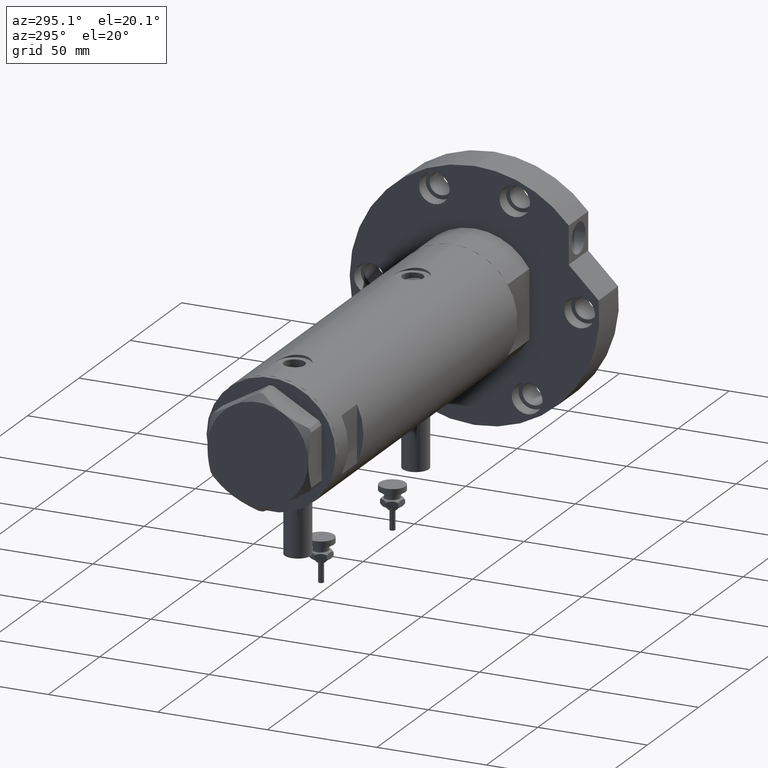
[diagram: clean part render]
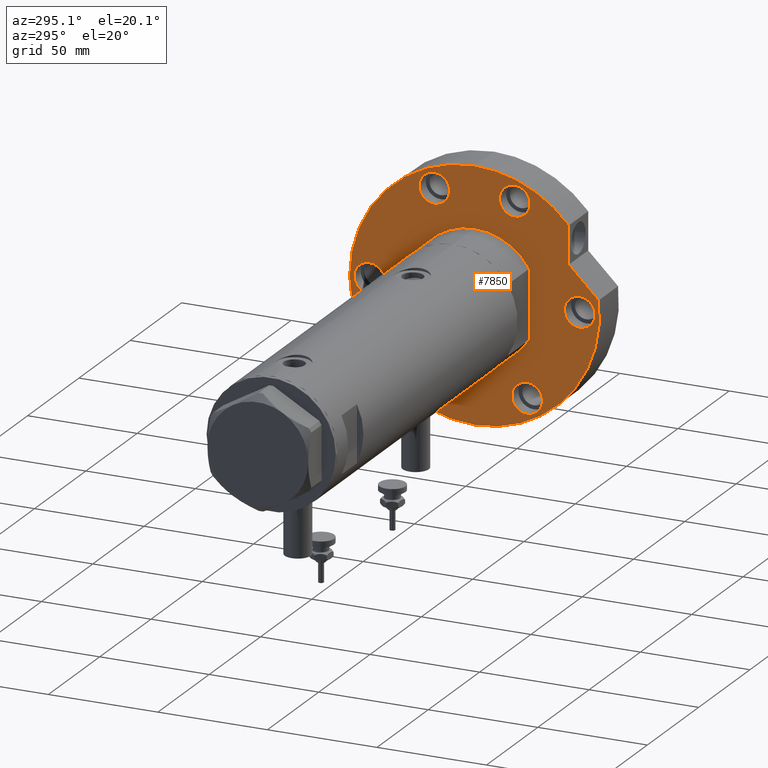
[diagram: same view with one face highlighted and labeled with its STEP entity id]
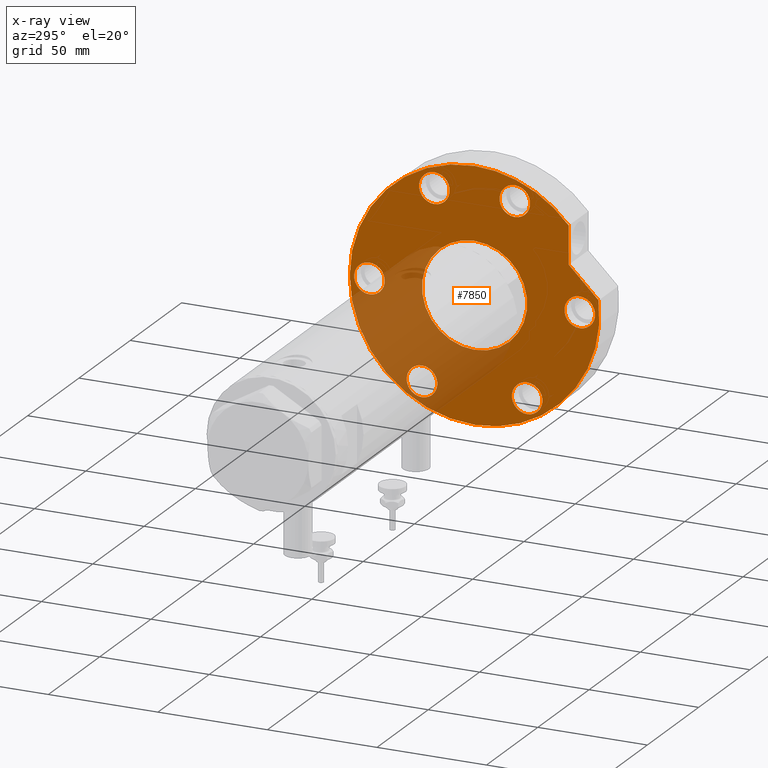
[diagram: x-ray of the same camera — body ghosted, the highlighted face saturated]
A machine part, auxiliary view. The second image highlights one B-rep face of the part: STEP entity #7850.
The next image is the same camera in x-ray: the body ghosted, the highlighted face saturated — about 28% of this face is hidden behind the body in this view.
In plain terms, the highlighted planar face has unit normal (1, 0, -0).
Its self-contained STEP definition (entity closure, byte-faithful):
#35 = CARTESIAN_POINT ( 'NONE',  ( 20.20945616129993283, 42.98007820311755012, 0.000000000000000000 ) ) ;
#62 = DIRECTION ( 'NONE',  ( 0.000000000000000000, 0.000000000000000000, -1.000000000000000000 ) ) ;
#82 = CARTESIAN_POINT ( 'NONE',  ( -41.56921938165294961, -24.00000000000018829, 0.000000000000000000 ) ) ;
#142 = EDGE_CURVE ( 'NONE', #5837, #6689, #3208, .T. ) ;
#200 = VERTEX_POINT ( 'NONE', #726 ) ;
#237 = EDGE_CURVE ( 'NONE', #6024, #7496, #1742, .T. ) ;
#301 = CARTESIAN_POINT ( 'NONE',  ( 44.34621756054168173, 18.36880475352450048, 0.000000000000000000 ) ) ;
#304 = AXIS2_PLACEMENT_3D ( 'NONE', #4825, #5321, #1639 ) ;
#313 = CIRCLE ( 'NONE', #4335, 6.999999999999999112 ) ;
#334 = DIRECTION ( 'NONE',  ( 0.000000000000000000, 0.000000000000000000, -1.000000000000000000 ) ) ;
#439 = AXIS2_PLACEMENT_3D ( 'NONE', #3894, #604, #2420 ) ;
#479 = FACE_BOUND ( 'NONE', #5874, .T. ) ;
#525 = CIRCLE ( 'NONE', #6155, 6.999999999999999112 ) ;
#552 = CARTESIAN_POINT ( 'NONE',  ( 0.000000000000000000, -48.00000000000000000, 0.000000000000000000 ) ) ;
#595 = DIRECTION ( 'NONE',  ( -1.000000000000000000, 0.000000000000000000, 0.000000000000000000 ) ) ;
#604 = DIRECTION ( 'NONE',  ( 0.000000000000000000, 0.000000000000000000, -1.000000000000000000 ) ) ;
#606 = DIRECTION ( 'NONE',  ( 0.000000000000000000, 0.000000000000000000, 1.000000000000000000 ) ) ;
#627 = CARTESIAN_POINT ( 'NONE',  ( 20.20945616129993283, 42.98007820311755012, 0.000000000000000000 ) ) ;
#658 = CIRCLE ( 'NONE', #6703, 57.00000000000000000 ) ;
#726 = CARTESIAN_POINT ( 'NONE',  ( 37.34621756054168173, -18.36880475352450048, 0.000000000000000000 ) ) ;
#832 = VECTOR ( 'NONE', #5862, 999.9999999999998863 ) ;
#865 = ORIENTED_EDGE ( 'NONE', *, *, #2834, .F. ) ;
#872 = EDGE_CURVE ( 'NONE', #7496, #6024, #1847, .T. ) ;
#938 = DIRECTION ( 'NONE',  ( 0.000000000000000000, 0.000000000000000000, -1.000000000000000000 ) ) ;
#1003 = DIRECTION ( 'NONE',  ( 1.000000000000000000, 0.000000000000000000, -0.000000000000000000 ) ) ;
#1027 = ORIENTED_EDGE ( 'NONE', *, *, #1993, .F. ) ;
#1037 = VERTEX_POINT ( 'NONE', #5931 ) ;
#1073 = AXIS2_PLACEMENT_3D ( 'NONE', #4545, #5749, #3247 ) ;
#1160 = DIRECTION ( 'NONE',  ( 0.000000000000000000, 0.000000000000000000, 1.000000000000000000 ) ) ;
#1207 = CARTESIAN_POINT ( 'NONE',  ( -48.56921938165294961, -24.00000000000018829, 0.000000000000000000 ) ) ;
#1314 = DIRECTION ( 'NONE',  ( 0.000000000000000000, 0.000000000000000000, 1.000000000000000000 ) ) ;
#1364 = DIRECTION ( 'NONE',  ( 0.000000000000000000, 0.000000000000000000, -1.000000000000000000 ) ) ;
#1407 = CARTESIAN_POINT ( 'NONE',  ( 44.34621756054168173, -18.36880475352450048, 0.000000000000000000 ) ) ;
#1435 = EDGE_CURVE ( 'NONE', #6992, #3123, #5864, .T. ) ;
#1506 = CARTESIAN_POINT ( 'NONE',  ( 6.569366352211361004, 56.62016801220598694, 0.000000000000000000 ) ) ;
#1551 = CARTESIAN_POINT ( 'NONE',  ( 57.00000000000000000, 6.980486755139912911E-15, 0.000000000000000000 ) ) ;
#1579 = CARTESIAN_POINT ( 'NONE',  ( 37.43945616129992970, 42.98007820311755012, 0.000000000000000000 ) ) ;
#1639 = DIRECTION ( 'NONE',  ( -1.000000000000000000, 0.000000000000000000, 0.000000000000000000 ) ) ;
#1687 = LINE ( 'NONE', #4615, #5362 ) ;
#1710 = EDGE_CURVE ( 'NONE', #1037, #1877, #1994, .T. ) ;
#1711 = FACE_BOUND ( 'NONE', #7567, .T. ) ;
#1742 = CIRCLE ( 'NONE', #4286, 6.999999999999999112 ) ;
#1840 = ORIENTED_EDGE ( 'NONE', *, *, #4459, .F. ) ;
#1847 = CIRCLE ( 'NONE', #4142, 6.999999999999999112 ) ;
#1877 = VERTEX_POINT ( 'NONE', #5830 ) ;
#1891 = DIRECTION ( 'NONE',  ( 0.000000000000000000, 0.000000000000000000, 1.000000000000000000 ) ) ;
#1930 = DIRECTION ( 'NONE',  ( 1.000000000000000000, 0.000000000000000000, 0.000000000000000000 ) ) ;
#1962 = CARTESIAN_POINT ( 'NONE',  ( 6.999999999999999112, 48.00000000000000000, 0.000000000000000000 ) ) ;
#1968 = DIRECTION ( 'NONE',  ( 1.000000000000000000, 0.000000000000000000, 0.000000000000000000 ) ) ;
#1977 = CARTESIAN_POINT ( 'NONE',  ( 0.000000000000000000, 48.00000000000000000, 0.000000000000000000 ) ) ;
#1993 = EDGE_CURVE ( 'NONE', #6471, #7214, #8030, .T. ) ;
#1994 = CIRCLE ( 'NONE', #4543, 24.00000000000000355 ) ;
#2011 = CARTESIAN_POINT ( 'NONE',  ( 0.000000000000000000, 0.000000000000000000, 0.000000000000000000 ) ) ;
#2016 = CARTESIAN_POINT ( 'NONE',  ( 37.34621756054168173, 18.36880475352450048, 0.000000000000000000 ) ) ;
#2161 = ORIENTED_EDGE ( 'NONE', *, *, #4468, .F. ) ;
#2229 = CARTESIAN_POINT ( 'NONE',  ( -34.56921938165294961, -24.00000000000018829, 0.000000000000000000 ) ) ;
#2270 = ORIENTED_EDGE ( 'NONE', *, *, #7503, .F. ) ;
#2347 = FACE_BOUND ( 'NONE', #8223, .T. ) ;
#2354 = ORIENTED_EDGE ( 'NONE', *, *, #4306, .T. ) ;
#2420 = DIRECTION ( 'NONE',  ( -1.000000000000000000, 0.000000000000000000, 0.000000000000000000 ) ) ;
#2535 = ORIENTED_EDGE ( 'NONE', *, *, #8215, .F. ) ;
#2538 = CARTESIAN_POINT ( 'NONE',  ( -41.56921938165310593, 23.99999999999990408, 0.000000000000000000 ) ) ;
#2559 = EDGE_CURVE ( 'NONE', #3387, #6228, #3756, .T. ) ;
#2645 = LINE ( 'NONE', #35, #832 ) ;
#2697 = CIRCLE ( 'NONE', #7391, 6.999999999999999112 ) ;
#2719 = ORIENTED_EDGE ( 'NONE', *, *, #872, .F. ) ;
#2767 = CARTESIAN_POINT ( 'NONE',  ( -34.56921938165311303, 23.99999999999990408, 0.000000000000000000 ) ) ;
#2777 = EDGE_CURVE ( 'NONE', #6021, #3123, #1687, .T. ) ;
#2834 = EDGE_CURVE ( 'NONE', #5327, #7414, #658, .T. ) ;
#2865 = DIRECTION ( 'NONE',  ( -1.000000000000000000, 0.000000000000000000, 0.000000000000000000 ) ) ;
#2892 = ORIENTED_EDGE ( 'NONE', *, *, #3910, .F. ) ;
#2951 = AXIS2_PLACEMENT_3D ( 'NONE', #6093, #334, #2865 ) ;
#2997 = CIRCLE ( 'NONE', #304, 6.999999999999999112 ) ;
#3069 = AXIS2_PLACEMENT_3D ( 'NONE', #301, #938, #7481 ) ;
#3076 = CARTESIAN_POINT ( 'NONE',  ( 51.34621756054168173, -18.36880475352450048, 0.000000000000000000 ) ) ;
#3084 = CIRCLE ( 'NONE', #7379, 24.00000000000000355 ) ;
#3123 = VERTEX_POINT ( 'NONE', #1579 ) ;
#3194 = CARTESIAN_POINT ( 'NONE',  ( -48.56921938165310593, 23.99999999999990408, 0.000000000000000000 ) ) ;
#3208 = CIRCLE ( 'NONE', #1073, 6.999999999999999112 ) ;
#3247 = DIRECTION ( 'NONE',  ( -1.000000000000000000, 0.000000000000000000, 0.000000000000000000 ) ) ;
#3387 = VERTEX_POINT ( 'NONE', #6131 ) ;
#3388 = CARTESIAN_POINT ( 'NONE',  ( -41.56921938165310593, 23.99999999999990408, 0.000000000000000000 ) ) ;
#3515 = VERTEX_POINT ( 'NONE', #3076 ) ;
#3520 = EDGE_LOOP ( 'NONE', ( #7551, #2719 ) ) ;
#3602 = FACE_BOUND ( 'NONE', #5528, .T. ) ;
#3756 = CIRCLE ( 'NONE', #2951, 6.999999999999999112 ) ;
#3774 = CARTESIAN_POINT ( 'NONE',  ( 0.000000000000000000, 0.000000000000000000, 0.000000000000000000 ) ) ;
#3852 = DIRECTION ( 'NONE',  ( -1.000000000000000000, 0.000000000000000000, 0.000000000000000000 ) ) ;
#3861 = DIRECTION ( 'NONE',  ( -1.000000000000000000, 0.000000000000000000, 0.000000000000000000 ) ) ;
#3888 = DIRECTION ( 'NONE',  ( -1.000000000000000000, 0.000000000000000000, 0.000000000000000000 ) ) ;
#3894 = CARTESIAN_POINT ( 'NONE',  ( 44.34621756054168173, -18.36880475352450048, 0.000000000000000000 ) ) ;
#3910 = EDGE_CURVE ( 'NONE', #3515, #200, #8162, .T. ) ;
#3930 = DIRECTION ( 'NONE',  ( 0.000000000000000000, 0.000000000000000000, -1.000000000000000000 ) ) ;
#3931 = DIRECTION ( 'NONE',  ( -1.000000000000000000, 0.000000000000000000, 0.000000000000000000 ) ) ;
#4075 = AXIS2_PLACEMENT_3D ( 'NONE', #6873, #1160, #1003 ) ;
#4142 = AXIS2_PLACEMENT_3D ( 'NONE', #3388, #62, #3861 ) ;
#4164 = AXIS2_PLACEMENT_3D ( 'NONE', #82, #8280, #595 ) ;
#4228 = ORIENTED_EDGE ( 'NONE', *, *, #7190, .F. ) ;
#4286 = AXIS2_PLACEMENT_3D ( 'NONE', #2538, #5091, #3888 ) ;
#4306 = EDGE_CURVE ( 'NONE', #1877, #1037, #3084, .T. ) ;
#4313 = PLANE ( 'NONE',  #4075 ) ;
#4335 = AXIS2_PLACEMENT_3D ( 'NONE', #6704, #1364, #3931 ) ;
#4425 = DIRECTION ( 'NONE',  ( 1.000000000000000000, 0.000000000000000000, 0.000000000000000000 ) ) ;
#4446 = AXIS2_PLACEMENT_3D ( 'NONE', #6719, #1314, #7705 ) ;
#4449 = ORIENTED_EDGE ( 'NONE', *, *, #1435, .F. ) ;
#4459 = EDGE_CURVE ( 'NONE', #7122, #6254, #6972, .T. ) ;
#4468 = EDGE_CURVE ( 'NONE', #6228, #3387, #525, .T. ) ;
#4509 = CARTESIAN_POINT ( 'NONE',  ( 51.34621756054168173, 18.36880475352450048, 0.000000000000000000 ) ) ;
#4543 = AXIS2_PLACEMENT_3D ( 'NONE', #3774, #606, #6316 ) ;
#4545 = CARTESIAN_POINT ( 'NONE',  ( 0.000000000000000000, -48.00000000000000000, 0.000000000000000000 ) ) ;
#4546 = AXIS2_PLACEMENT_3D ( 'NONE', #1407, #7739, #3852 ) ;
#4588 = ORIENTED_EDGE ( 'NONE', *, *, #2559, .F. ) ;
#4591 = CIRCLE ( 'NONE', #439, 6.999999999999999112 ) ;
#4615 = CARTESIAN_POINT ( 'NONE',  ( 20.20945616129993283, 42.98007820311755012, 0.000000000000000000 ) ) ;
#4670 = AXIS2_PLACEMENT_3D ( 'NONE', #5293, #7228, #7860 ) ;
#4825 = CARTESIAN_POINT ( 'NONE',  ( -41.56921938165294961, -24.00000000000018829, 0.000000000000000000 ) ) ;
#5047 = EDGE_LOOP ( 'NONE', ( #5078, #7876, #4449, #5202, #865 ) ) ;
#5048 = CARTESIAN_POINT ( 'NONE',  ( 6.999999999999999112, -48.00000000000000000, 0.000000000000000000 ) ) ;
#5078 = ORIENTED_EDGE ( 'NONE', *, *, #6445, .T. ) ;
#5091 = DIRECTION ( 'NONE',  ( 0.000000000000000000, 0.000000000000000000, -1.000000000000000000 ) ) ;
#5202 = ORIENTED_EDGE ( 'NONE', *, *, #5547, .F. ) ;
#5293 = CARTESIAN_POINT ( 'NONE',  ( 0.000000000000000000, 0.000000000000000000, 0.000000000000000000 ) ) ;
#5321 = DIRECTION ( 'NONE',  ( 0.000000000000000000, 0.000000000000000000, -1.000000000000000000 ) ) ;
#5327 = VERTEX_POINT ( 'NONE', #1506 ) ;
#5362 = VECTOR ( 'NONE', #1968, 1000.000000000000000 ) ;
#5488 = EDGE_CURVE ( 'NONE', #6689, #5837, #2697, .T. ) ;
#5528 = EDGE_LOOP ( 'NONE', ( #4588, #2161 ) ) ;
#5547 = EDGE_CURVE ( 'NONE', #7414, #6992, #6989, .T. ) ;
#5557 = FACE_BOUND ( 'NONE', #6410, .T. ) ;
#5656 = ORIENTED_EDGE ( 'NONE', *, *, #142, .F. ) ;
#5667 = DIRECTION ( 'NONE',  ( 0.000000000000000000, 0.000000000000000000, -1.000000000000000000 ) ) ;
#5749 = DIRECTION ( 'NONE',  ( 0.000000000000000000, 0.000000000000000000, -1.000000000000000000 ) ) ;
#5830 = CARTESIAN_POINT ( 'NONE',  ( -24.00000000000000355, 2.939152317953648289E-15, 0.000000000000000000 ) ) ;
#5837 = VERTEX_POINT ( 'NONE', #6955 ) ;
#5862 = DIRECTION ( 'NONE',  ( 0.7071067811865510144, -0.7071067811865441310, -0.000000000000000000 ) ) ;
#5864 = CIRCLE ( 'NONE', #4670, 57.00000000000000000 ) ;
#5874 = EDGE_LOOP ( 'NONE', ( #1027, #2535 ) ) ;
#5931 = CARTESIAN_POINT ( 'NONE',  ( 24.00000000000000355, 0.000000000000000000, 0.000000000000000000 ) ) ;
#6021 = VERTEX_POINT ( 'NONE', #627 ) ;
#6024 = VERTEX_POINT ( 'NONE', #3194 ) ;
#6093 = CARTESIAN_POINT ( 'NONE',  ( 0.000000000000000000, 48.00000000000000000, 0.000000000000000000 ) ) ;
#6131 = CARTESIAN_POINT ( 'NONE',  ( -6.999999999999999112, 48.00000000000000000, 0.000000000000000000 ) ) ;
#6155 = AXIS2_PLACEMENT_3D ( 'NONE', #1977, #3930, #6469 ) ;
#6228 = VERTEX_POINT ( 'NONE', #1962 ) ;
#6254 = VERTEX_POINT ( 'NONE', #2229 ) ;
#6316 = DIRECTION ( 'NONE',  ( 1.000000000000000000, 0.000000000000000000, 0.000000000000000000 ) ) ;
#6351 = EDGE_LOOP ( 'NONE', ( #1840, #2270 ) ) ;
#6410 = EDGE_LOOP ( 'NONE', ( #4228, #2892 ) ) ;
#6445 = EDGE_CURVE ( 'NONE', #5327, #6021, #2645, .T. ) ;
#6469 = DIRECTION ( 'NONE',  ( -1.000000000000000000, 0.000000000000000000, 0.000000000000000000 ) ) ;
#6471 = VERTEX_POINT ( 'NONE', #2016 ) ;
#6689 = VERTEX_POINT ( 'NONE', #5048 ) ;
#6703 = AXIS2_PLACEMENT_3D ( 'NONE', #2011, #1891, #1930 ) ;
#6704 = CARTESIAN_POINT ( 'NONE',  ( 44.34621756054168173, 18.36880475352450048, 0.000000000000000000 ) ) ;
#6719 = CARTESIAN_POINT ( 'NONE',  ( 0.000000000000000000, 0.000000000000000000, 0.000000000000000000 ) ) ;
#6831 = ORIENTED_EDGE ( 'NONE', *, *, #5488, .F. ) ;
#6873 = CARTESIAN_POINT ( 'NONE',  ( 0.000000000000000000, 0.000000000000000000, 0.000000000000000000 ) ) ;
#6955 = CARTESIAN_POINT ( 'NONE',  ( -6.999999999999999112, -48.00000000000000000, 0.000000000000000000 ) ) ;
#6972 = CIRCLE ( 'NONE', #4164, 6.999999999999999112 ) ;
#6989 = CIRCLE ( 'NONE', #4446, 57.00000000000000000 ) ;
#6992 = VERTEX_POINT ( 'NONE', #1551 ) ;
#7070 = DIRECTION ( 'NONE',  ( 0.000000000000000000, 0.000000000000000000, 1.000000000000000000 ) ) ;
#7122 = VERTEX_POINT ( 'NONE', #1207 ) ;
#7190 = EDGE_CURVE ( 'NONE', #200, #3515, #4591, .T. ) ;
#7214 = VERTEX_POINT ( 'NONE', #4509 ) ;
#7228 = DIRECTION ( 'NONE',  ( 0.000000000000000000, 0.000000000000000000, 1.000000000000000000 ) ) ;
#7379 = AXIS2_PLACEMENT_3D ( 'NONE', #7525, #7070, #4425 ) ;
#7391 = AXIS2_PLACEMENT_3D ( 'NONE', #552, #5667, #8240 ) ;
#7414 = VERTEX_POINT ( 'NONE', #7516 ) ;
#7466 = FACE_BOUND ( 'NONE', #6351, .T. ) ;
#7481 = DIRECTION ( 'NONE',  ( -1.000000000000000000, 0.000000000000000000, 0.000000000000000000 ) ) ;
#7496 = VERTEX_POINT ( 'NONE', #2767 ) ;
#7503 = EDGE_CURVE ( 'NONE', #6254, #7122, #2997, .T. ) ;
#7516 = CARTESIAN_POINT ( 'NONE',  ( -57.00000000000000000, 0.000000000000000000, 0.000000000000000000 ) ) ;
#7525 = CARTESIAN_POINT ( 'NONE',  ( 0.000000000000000000, 0.000000000000000000, 0.000000000000000000 ) ) ;
#7551 = ORIENTED_EDGE ( 'NONE', *, *, #237, .F. ) ;
#7567 = EDGE_LOOP ( 'NONE', ( #8289, #2354 ) ) ;
#7705 = DIRECTION ( 'NONE',  ( 1.000000000000000000, 0.000000000000000000, 0.000000000000000000 ) ) ;
#7739 = DIRECTION ( 'NONE',  ( 0.000000000000000000, 0.000000000000000000, -1.000000000000000000 ) ) ;
#7850 = ADVANCED_FACE ( 'NONE', ( #3602, #479, #5557, #2347, #7466, #8126, #1711, #8003 ), #4313, .F. ) ;
#7860 = DIRECTION ( 'NONE',  ( 1.000000000000000000, 0.000000000000000000, 0.000000000000000000 ) ) ;
#7876 = ORIENTED_EDGE ( 'NONE', *, *, #2777, .T. ) ;
#8003 = FACE_OUTER_BOUND ( 'NONE', #5047, .T. ) ;
#8030 = CIRCLE ( 'NONE', #3069, 6.999999999999999112 ) ;
#8126 = FACE_BOUND ( 'NONE', #3520, .T. ) ;
#8162 = CIRCLE ( 'NONE', #4546, 6.999999999999999112 ) ;
#8215 = EDGE_CURVE ( 'NONE', #7214, #6471, #313, .T. ) ;
#8223 = EDGE_LOOP ( 'NONE', ( #5656, #6831 ) ) ;
#8240 = DIRECTION ( 'NONE',  ( -1.000000000000000000, 0.000000000000000000, 0.000000000000000000 ) ) ;
#8280 = DIRECTION ( 'NONE',  ( 0.000000000000000000, 0.000000000000000000, -1.000000000000000000 ) ) ;
#8289 = ORIENTED_EDGE ( 'NONE', *, *, #1710, .T. ) ;